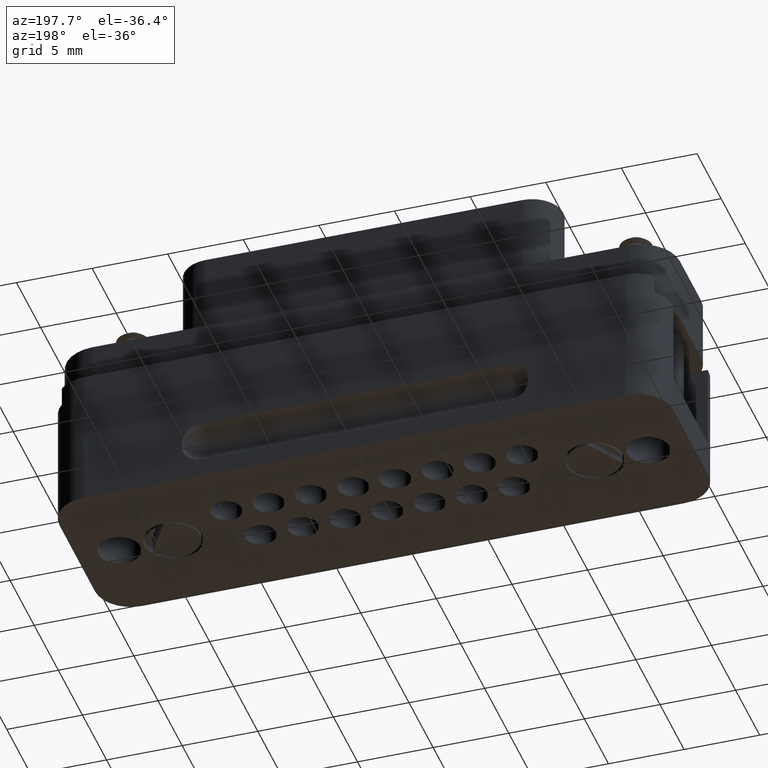
[diagram: clean part render]
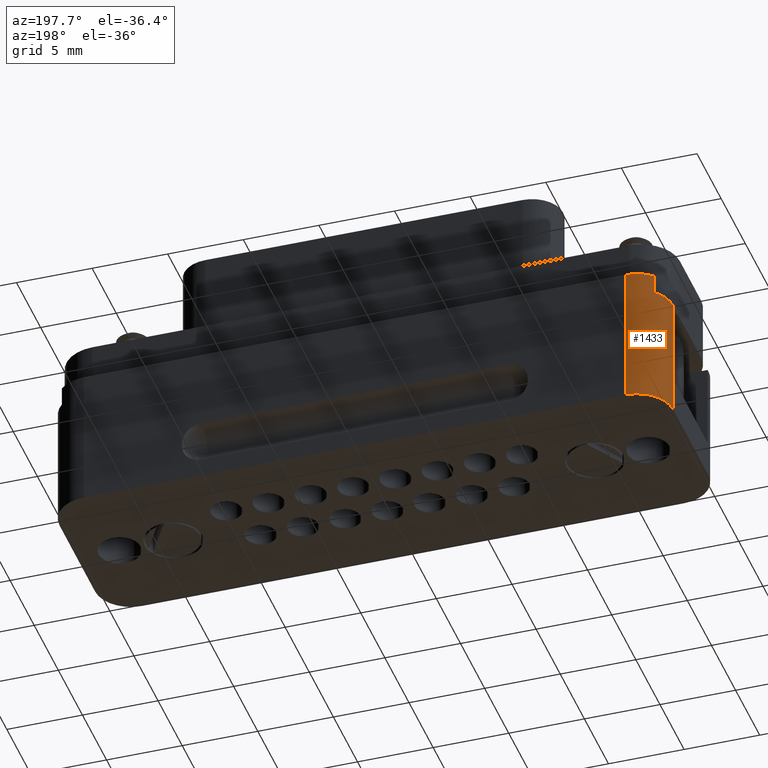
[diagram: same view with one face highlighted and labeled with its STEP entity id]
A machine part, auxiliary view. The second image highlights one B-rep face of the part: STEP entity #1433.
In plain terms, the highlighted cylindrical surface (partial cylindrical patch) has radius 2.3622 mm, axis along (-0, -0, -1).
Its self-contained STEP definition (entity closure, byte-faithful):
#186 = ORIENTED_EDGE ( 'NONE', *, *, #2565, .F. ) ;
#187 = ORIENTED_EDGE ( 'NONE', *, *, #2564, .T. ) ;
#189 = ORIENTED_EDGE ( 'NONE', *, *, #3004, .T. ) ;
#190 = ORIENTED_EDGE ( 'NONE', *, *, #2557, .F. ) ;
#192 = ORIENTED_EDGE ( 'NONE', *, *, #2562, .T. ) ;
#193 = ORIENTED_EDGE ( 'NONE', *, *, #2563, .F. ) ;
#1383 = VECTOR ( 'NONE', #4753, 39.37007874015748100 ) ;
#1390 = LINE ( 'NONE', #4761, #1383 ) ;
#1433 = ADVANCED_FACE ( 'NONE', ( #1632 ), #1622, .T. ) ;
#1545 = VECTOR ( 'NONE', #5083, 39.37007874015748100 ) ;
#1547 = LINE ( 'NONE', #5084, #1545 ) ;
#1548 = CIRCLE ( 'NONE', #1736, 0.09300000000000020800 ) ;
#1549 = VECTOR ( 'NONE', #5086, 39.37007874015748100 ) ;
#1552 = LINE ( 'NONE', #5087, #1549 ) ;
#1560 = CIRCLE ( 'NONE', #3202, 0.09300000000000020800 ) ;
#1561 = CIRCLE ( 'NONE', #1735, 0.09300000000000020800 ) ;
#1622 = CYLINDRICAL_SURFACE ( 'NONE', #3178, 0.09300000000000020800 ) ;
#1632 = FACE_OUTER_BOUND ( 'NONE', #2758, .T. ) ;
#1735 = AXIS2_PLACEMENT_3D ( 'NONE', #5082, #5081, #5079 ) ;
#1736 = AXIS2_PLACEMENT_3D ( 'NONE', #5076, #5075, #5074 ) ;
#2437 = VERTEX_POINT ( 'NONE', #5275 ) ;
#2442 = VERTEX_POINT ( 'NONE', #5270 ) ;
#2472 = VERTEX_POINT ( 'NONE', #5238 ) ;
#2491 = VERTEX_POINT ( 'NONE', #5224 ) ;
#2520 = VERTEX_POINT ( 'NONE', #5185 ) ;
#2525 = VERTEX_POINT ( 'NONE', #5181 ) ;
#2557 = EDGE_CURVE ( 'NONE', #2525, #2442, #1560, .T. ) ;
#2562 = EDGE_CURVE ( 'NONE', #2491, #2442, #1552, .T. ) ;
#2563 = EDGE_CURVE ( 'NONE', #2491, #2472, #1561, .T. ) ;
#2564 = EDGE_CURVE ( 'NONE', #2520, #2437, #1548, .T. ) ;
#2565 = EDGE_CURVE ( 'NONE', #2472, #2437, #1547, .T. ) ;
#2758 = EDGE_LOOP ( 'NONE', ( #193, #192, #190, #189, #187, #186 ) ) ;
#3004 = EDGE_CURVE ( 'NONE', #2525, #2520, #1390, .T. ) ;
#3178 = AXIS2_PLACEMENT_3D ( 'NONE', #5273, #5280, #5289 ) ;
#3202 = AXIS2_PLACEMENT_3D ( 'NONE', #5099, #5098, #5097 ) ;
#4753 = DIRECTION ( 'NONE',  ( -0.0000000000000000000, -0.0000000000000000000, -1.000000000000000000 ) ) ;
#4761 = CARTESIAN_POINT ( 'NONE',  ( -0.4985619370263266200, 0.4368096671230262700, 0.2022459008453935100 ) ) ;
#5074 = DIRECTION ( 'NONE',  ( 1.000000000000000000, 0.0000000000000000000, 0.0000000000000000000 ) ) ;
#5075 = DIRECTION ( 'NONE',  ( 0.0000000000000000000, 0.0000000000000000000, 1.000000000000000000 ) ) ;
#5076 = CARTESIAN_POINT ( 'NONE',  ( -0.4985619370263266200, 0.3438096671230258000, -0.1677540991546065100 ) ) ;
#5079 = DIRECTION ( 'NONE',  ( 1.000000000000000000, 0.0000000000000000000, 0.0000000000000000000 ) ) ;
#5081 = DIRECTION ( 'NONE',  ( 0.0000000000000000000, 0.0000000000000000000, 1.000000000000000000 ) ) ;
#5082 = CARTESIAN_POINT ( 'NONE',  ( -0.4985619370263266200, 0.3438096671230258000, 0.1522459008453934900 ) ) ;
#5083 = DIRECTION ( 'NONE',  ( -0.0000000000000000000, -0.0000000000000000000, -1.000000000000000000 ) ) ;
#5084 = CARTESIAN_POINT ( 'NONE',  ( -0.5915619370263265300, 0.3438096671230258000, 0.2022459008453935100 ) ) ;
#5086 = DIRECTION ( 'NONE',  ( 0.0000000000000000000, 0.0000000000000000000, 1.000000000000000000 ) ) ;
#5087 = CARTESIAN_POINT ( 'NONE',  ( -0.5642014976662334000, 0.4096917441925903600, 0.2022459008453935100 ) ) ;
#5097 = DIRECTION ( 'NONE',  ( 1.000000000000000000, 0.0000000000000000000, 0.0000000000000000000 ) ) ;
#5098 = DIRECTION ( 'NONE',  ( 0.0000000000000000000, 0.0000000000000000000, 1.000000000000000000 ) ) ;
#5099 = CARTESIAN_POINT ( 'NONE',  ( -0.4985619370263266200, 0.3438096671230258000, 0.2022459008453935100 ) ) ;
#5181 = CARTESIAN_POINT ( 'NONE',  ( -0.4985619370263266200, 0.4368096671230262700, 0.2022459008453935100 ) ) ;
#5185 = CARTESIAN_POINT ( 'NONE',  ( -0.4985619370263266200, 0.4368096671230262700, -0.1677540991546065100 ) ) ;
#5224 = CARTESIAN_POINT ( 'NONE',  ( -0.5642014976662334000, 0.4096917441925903600, 0.1522459008453934900 ) ) ;
#5238 = CARTESIAN_POINT ( 'NONE',  ( -0.5915619370263265300, 0.3438096671230258000, 0.1522459008453934900 ) ) ;
#5270 = CARTESIAN_POINT ( 'NONE',  ( -0.5642014976662334000, 0.4096917441925903600, 0.2022459008453935100 ) ) ;
#5273 = CARTESIAN_POINT ( 'NONE',  ( -0.4985619370263266200, 0.3438096671230258000, 0.2022459008453935100 ) ) ;
#5275 = CARTESIAN_POINT ( 'NONE',  ( -0.5915619370263265300, 0.3438096671230258000, -0.1677540991546065100 ) ) ;
#5280 = DIRECTION ( 'NONE',  ( -0.0000000000000000000, -0.0000000000000000000, -1.000000000000000000 ) ) ;
#5289 = DIRECTION ( 'NONE',  ( -1.000000000000000000, 0.0000000000000000000, 0.0000000000000000000 ) ) ;